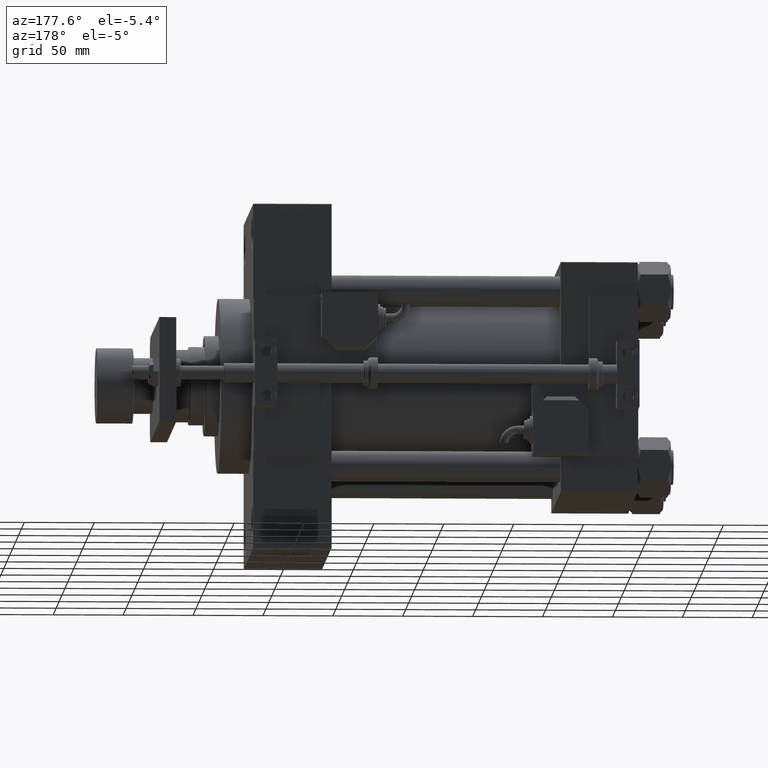
[diagram: clean part render]
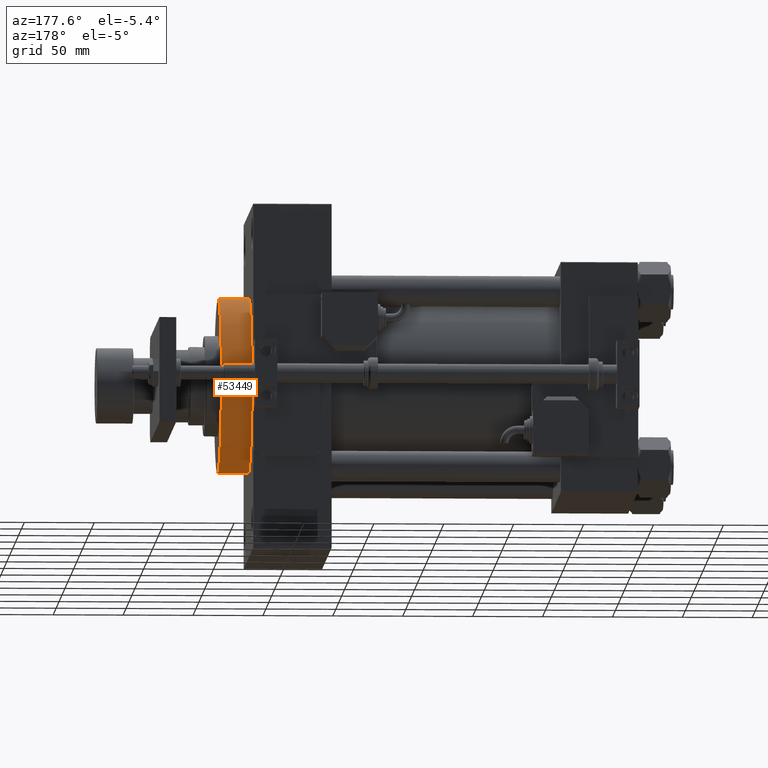
[diagram: same view with one face highlighted and labeled with its STEP entity id]
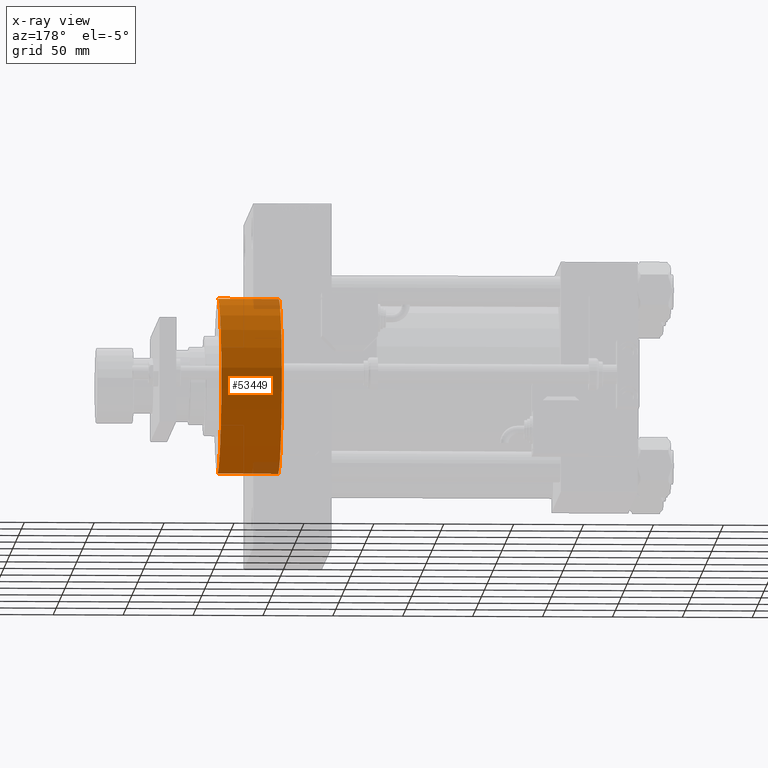
[diagram: x-ray of the same camera — body ghosted, the highlighted face saturated]
A machine part, auxiliary view. The second image highlights one B-rep face of the part: STEP entity #53449.
The next image is the same camera in x-ray: the body ghosted, the highlighted face saturated — about 6% of this face is hidden behind the body in this view.
In plain terms, the highlighted cylindrical surface (partial cylindrical patch) has radius 62.75 mm, axis along (-1, -0, 0).
Its self-contained STEP definition (entity closure, byte-faithful):
#845 = VERTEX_POINT ( 'NONE', #50268 ) ;
#4354 = DIRECTION ( 'NONE',  ( 1.000000000000000000, 0.000000000000000000, 0.000000000000000000 ) ) ;
#6492 = CARTESIAN_POINT ( 'NONE',  ( 62.75000000000000000, 7.684658664649641591E-15, 43.25999999999999801 ) ) ;
#7277 = ORIENTED_EDGE ( 'NONE', *, *, #41765, .F. ) ;
#8584 = EDGE_CURVE ( 'NONE', #20136, #845, #40808, .T. ) ;
#8615 = VECTOR ( 'NONE', #19336, 1000.000000000000000 ) ;
#8647 = AXIS2_PLACEMENT_3D ( 'NONE', #45211, #46004, #8706 ) ;
#8706 = DIRECTION ( 'NONE',  ( 1.000000000000000000, 0.000000000000000000, 0.000000000000000000 ) ) ;
#10540 = EDGE_LOOP ( 'NONE', ( #17409, #12146, #24733, #7277 ) ) ;
#10665 = AXIS2_PLACEMENT_3D ( 'NONE', #39958, #35617, #11943 ) ;
#11943 = DIRECTION ( 'NONE',  ( -1.000000000000000000, 0.000000000000000000, 0.000000000000000000 ) ) ;
#12146 = ORIENTED_EDGE ( 'NONE', *, *, #8584, .T. ) ;
#12794 = CARTESIAN_POINT ( 'NONE',  ( 0.000000000000000000, 0.000000000000000000, 0.000000000000000000 ) ) ;
#15250 = CARTESIAN_POINT ( 'NONE',  ( 62.75000000000000000, 7.684658664649641591E-15, 43.25999999999999801 ) ) ;
#17409 = ORIENTED_EDGE ( 'NONE', *, *, #22168, .F. ) ;
#19336 = DIRECTION ( 'NONE',  ( -0.000000000000000000, -0.000000000000000000, -1.000000000000000000 ) ) ;
#19569 = CYLINDRICAL_SURFACE ( 'NONE', #10665, 62.75000000000000000 ) ;
#20136 = VERTEX_POINT ( 'NONE', #6492 ) ;
#20816 = CIRCLE ( 'NONE', #38167, 62.75000000000000000 ) ;
#21700 = CARTESIAN_POINT ( 'NONE',  ( -62.75000000000000000, 0.000000000000000000, 43.25999999999999801 ) ) ;
#22168 = EDGE_CURVE ( 'NONE', #20136, #26808, #53860, .T. ) ;
#22171 = EDGE_CURVE ( 'NONE', #845, #51677, #20816, .T. ) ;
#23929 = FACE_OUTER_BOUND ( 'NONE', #10540, .T. ) ;
#24733 = ORIENTED_EDGE ( 'NONE', *, *, #22171, .T. ) ;
#24792 = CARTESIAN_POINT ( 'NONE',  ( -62.75000000000000000, 0.000000000000000000, 0.000000000000000000 ) ) ;
#26808 = VERTEX_POINT ( 'NONE', #21700 ) ;
#26897 = DIRECTION ( 'NONE',  ( -0.000000000000000000, -0.000000000000000000, -1.000000000000000000 ) ) ;
#35617 = DIRECTION ( 'NONE',  ( -0.000000000000000000, -0.000000000000000000, -1.000000000000000000 ) ) ;
#35841 = CARTESIAN_POINT ( 'NONE',  ( -62.75000000000000000, 0.000000000000000000, 43.25999999999999801 ) ) ;
#38167 = AXIS2_PLACEMENT_3D ( 'NONE', #12794, #40834, #4354 ) ;
#39917 = LINE ( 'NONE', #35841, #44062 ) ;
#39958 = CARTESIAN_POINT ( 'NONE',  ( 0.000000000000000000, 0.000000000000000000, 43.25999999999999801 ) ) ;
#40808 = LINE ( 'NONE', #15250, #8615 ) ;
#40834 = DIRECTION ( 'NONE',  ( 0.000000000000000000, 0.000000000000000000, 1.000000000000000000 ) ) ;
#41765 = EDGE_CURVE ( 'NONE', #26808, #51677, #39917, .T. ) ;
#44062 = VECTOR ( 'NONE', #26897, 1000.000000000000000 ) ;
#45211 = CARTESIAN_POINT ( 'NONE',  ( 0.000000000000000000, 0.000000000000000000, 43.25999999999999801 ) ) ;
#46004 = DIRECTION ( 'NONE',  ( 0.000000000000000000, 0.000000000000000000, 1.000000000000000000 ) ) ;
#50268 = CARTESIAN_POINT ( 'NONE',  ( 62.75000000000000000, 7.684658664649641591E-15, 0.000000000000000000 ) ) ;
#51677 = VERTEX_POINT ( 'NONE', #24792 ) ;
#53449 = ADVANCED_FACE ( 'NONE', ( #23929 ), #19569, .T. ) ;
#53860 = CIRCLE ( 'NONE', #8647, 62.75000000000000000 ) ;